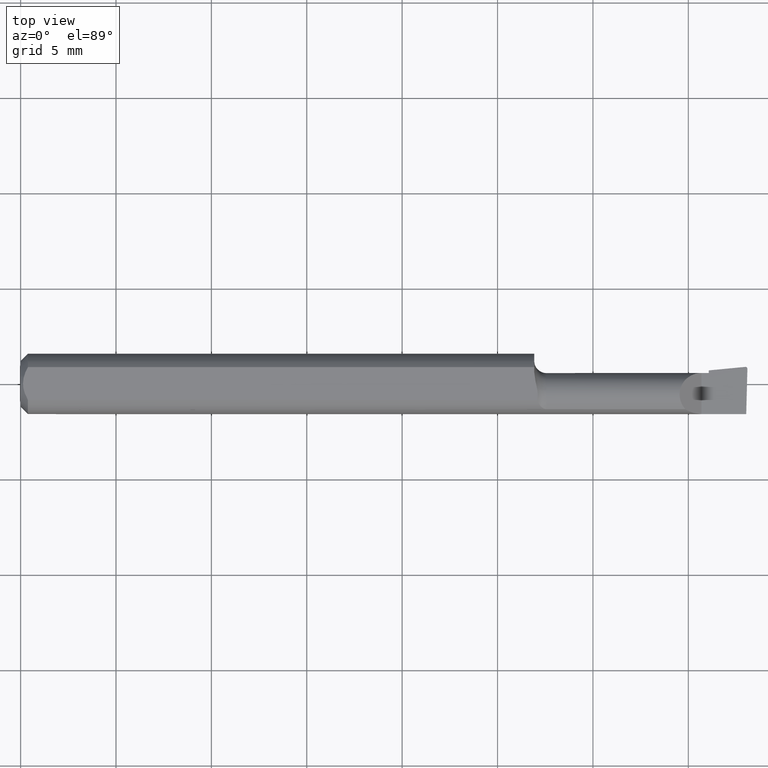
[diagram: clean part render]
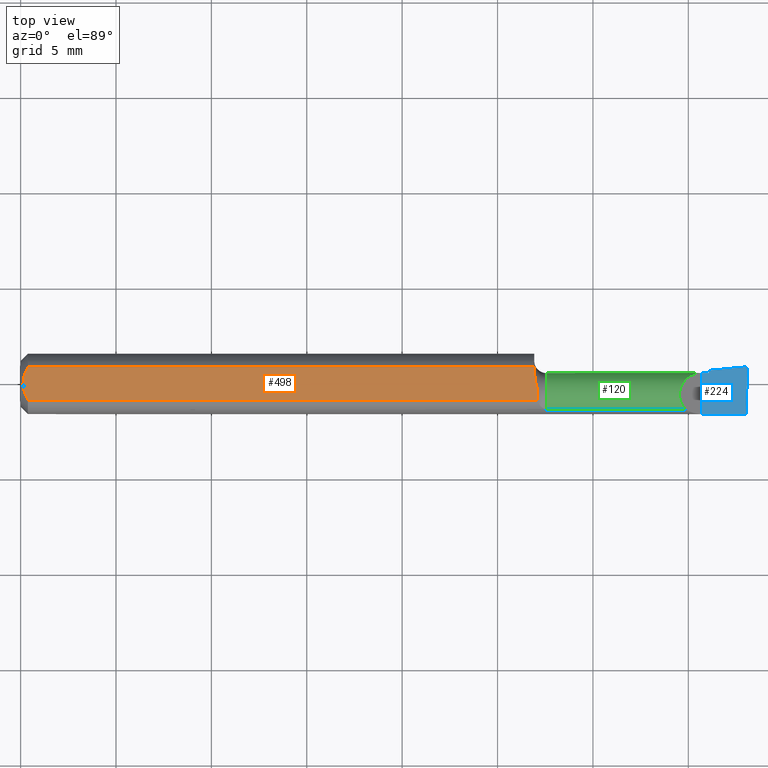
[diagram: same view with three faces highlighted in distinct colors, each labeled with its STEP entity id]
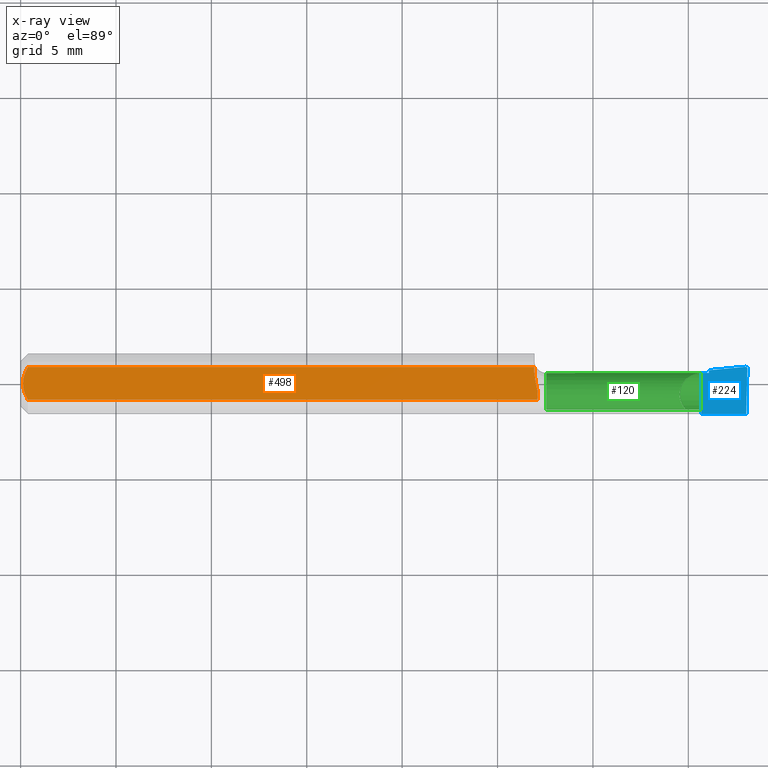
[diagram: x-ray of the same camera — body ghosted, the three highlighted faces saturated]
A machine part, top view with three faces highlighted in distinct colors.
The next image is the same camera in x-ray (body ghosted, the three faces saturated) — at least one of them is partly hidden behind the body in this view.
Their STEP definitions:

[orange] entity #498 — the highlighted planar face has unit normal (0, -0, -1).
#20 = DIRECTION ( 'NONE',  ( 0.0000000000000000000, -7.598598113218357399E-17, -1.000000000000000000 ) ) ;
#23 = CARTESIAN_POINT ( 'NONE',  ( 0.004999999999989931769, 7.898418181085889318E-16, 0.05235000000000000070 ) ) ;
#25 = CARTESIAN_POINT ( 'NONE',  ( 0.01500000000000185039, -0.03386738844380016850, 0.05235000000000000070 ) ) ;
#27 = CARTESIAN_POINT ( 'NONE',  ( 0.01216137397042175820, -0.02864146636719541034, 0.05235000000000000070 ) ) ;
#35 = CARTESIAN_POINT ( 'NONE',  ( 0.0000000000000000000, -0.03386738844375222768, 0.05234999999999997988 ) ) ;
#41 = VECTOR ( 'NONE', #346, 39.37007874015748143 ) ;
#67 = CARTESIAN_POINT ( 'NONE',  ( 0.01500000000000185039, -0.03386738844380016850, 0.05235000000000000070 ) ) ;
#69 = ORIENTED_EDGE ( 'NONE', *, *, #484, .F. ) ;
#75 = VECTOR ( 'NONE', #504, 39.37007874015748143 ) ;
#81 = EDGE_LOOP ( 'NONE', ( #628, #236, #565, #69, #408, #614 ) ) ;
#83 = CARTESIAN_POINT ( 'NONE',  ( 1.066182189689074633, -0.03386738844375222074, 0.05235000000000000070 ) ) ;
#94 = FACE_OUTER_BOUND ( 'NONE', #81, .T. ) ;
#99 = CARTESIAN_POINT ( 'NONE',  ( 0.0000000000000000000, 0.03386738844375223462, 0.05234999999999997988 ) ) ;
#130 = CARTESIAN_POINT ( 'NONE',  ( 1.067516889514667611, -0.02435447415594420989, 0.05235000000000000070 ) ) ;
#160 = EDGE_CURVE ( 'NONE', #266, #355, #398, .T. ) ;
#182 = LINE ( 'NONE', #35, #41 ) ;
#185 = CARTESIAN_POINT ( 'NONE',  ( 0.01218518006020415795, 0.02868529347538067639, 0.05235000000000000070 ) ) ;
#187 = CARTESIAN_POINT ( 'NONE',  ( 1.063943373083574784, -0.0009488278625737072997, 0.05234999999999998682 ) ) ;
#188 = VERTEX_POINT ( 'NONE', #67 ) ;
#202 = AXIS2_PLACEMENT_3D ( 'NONE', #555, #20, #243 ) ;
#235 = B_SPLINE_CURVE_WITH_KNOTS ( 'NONE', 3,
 ( #249, #568, #241, #501, #246, #559, #187, #566, #298, #651, #601, #130, #339, #83 ),
 .UNSPECIFIED., .F., .F.,
 ( 4, 2, 2, 2, 2, 2, 4 ),
 ( 0.008234143088603514474, 0.008591734916881392167, 0.008770530831020331014, 0.008859928788089797835, 0.008949326745159266391, 0.009306918573437142350, 0.009664510401715018309 ),
 .UNSPECIFIED. ) ;
#236 = ORIENTED_EDGE ( 'NONE', *, *, #524, .F. ) ;
#237 = CARTESIAN_POINT ( 'NONE',  ( 0.004999999999999268051, 0.005945714695019511074, 0.05235000000000000070 ) ) ;
#241 = CARTESIAN_POINT ( 'NONE',  ( 1.060684336333183486, 0.01400540109987310697, 0.05234999999999998682 ) ) ;
#243 = DIRECTION ( 'NONE',  ( 0.0000000000000000000, 1.000000000000000000, -7.598598113218357399E-17 ) ) ;
#246 = CARTESIAN_POINT ( 'NONE',  ( 1.062747134522028736, 0.004017454403653804990, 0.05235000000000000764 ) ) ;
#249 = CARTESIAN_POINT ( 'NONE',  ( 1.060000000000000275, 0.02414546164772667439, 0.05235000000000000070 ) ) ;
#266 = VERTEX_POINT ( 'NONE', #412 ) ;
#282 = CARTESIAN_POINT ( 'NONE',  ( 1.060000000000000275, 0.02414546164772667439, 0.05235000000000000070 ) ) ;
#286 = CARTESIAN_POINT ( 'NONE',  ( 0.004999999999998879473, -0.005957634400466955450, 0.05235000000000000070 ) ) ;
#295 = CARTESIAN_POINT ( 'NONE',  ( 0.009678036133109307534, -0.02325481837211496039, 0.05235000000000000070 ) ) ;
#298 = CARTESIAN_POINT ( 'NONE',  ( 1.064818038875745554, -0.004579228880846305041, 0.05235000000000001458 ) ) ;
#329 = CARTESIAN_POINT ( 'NONE',  ( 1.060000000000000275, 0.03386738844375224156, 0.05235000000000000070 ) ) ;
#332 = PLANE ( 'NONE',  #202 ) ;
#337 = CARTESIAN_POINT ( 'NONE',  ( 0.004999999999989931769, 7.898418181085889318E-16, 0.05235000000000000070 ) ) ;
#339 = CARTESIAN_POINT ( 'NONE',  ( 1.067065763150419899, -0.02914627190158987358, 0.05234999999999998682 ) ) ;
#340 = B_SPLINE_CURVE_WITH_KNOTS ( 'NONE', 3,
 ( #25, #27, #295, #394, #286, #337 ),
 .UNSPECIFIED., .F., .F.,
 ( 4, 2, 4 ),
 ( 0.002133667072902290657, 0.002585433046183636171, 0.003037199019464981685 ),
 .UNSPECIFIED. ) ;
#346 = DIRECTION ( 'NONE',  ( -1.000000000000000000, -0.0000000000000000000, -0.0000000000000000000 ) ) ;
#355 = VERTEX_POINT ( 'NONE', #329 ) ;
#365 = VECTOR ( 'NONE', #532, 39.37007874015748143 ) ;
#394 = CARTESIAN_POINT ( 'NONE',  ( 0.006057557792978140489, -0.01187252718384441616, 0.05234999999999998682 ) ) ;
#398 = LINE ( 'NONE', #99, #365 ) ;
#408 = ORIENTED_EDGE ( 'NONE', *, *, #563, .F. ) ;
#412 = CARTESIAN_POINT ( 'NONE',  ( 0.01500000000000000465, 0.03386738844375223462, 0.05234999999999997988 ) ) ;
#425 = CARTESIAN_POINT ( 'NONE',  ( 1.066182189689074633, -0.03386738844375222074, 0.05235000000000000070 ) ) ;
#426 = VERTEX_POINT ( 'NONE', #425 ) ;
#453 = EDGE_CURVE ( 'NONE', #496, #426, #235, .T. ) ;
#484 = EDGE_CURVE ( 'NONE', #665, #266, #557, .T. ) ;
#491 = LINE ( 'NONE', #564, #75 ) ;
#496 = VERTEX_POINT ( 'NONE', #282 ) ;
#497 = CARTESIAN_POINT ( 'NONE',  ( 0.009669996313769784607, 0.02323004575534281385, 0.05234999999999998682 ) ) ;
#498 = ADVANCED_FACE ( 'NONE', ( #94 ), #332, .F. ) ;
#501 = CARTESIAN_POINT ( 'NONE',  ( 1.062172826817815663, 0.006508548278878137014, 0.05235000000000000070 ) ) ;
#504 = DIRECTION ( 'NONE',  ( 5.691349986800549142E-18, -1.000000000000000000, 7.598598113218357399E-17 ) ) ;
#524 = EDGE_CURVE ( 'NONE', #355, #496, #491, .T. ) ;
#532 = DIRECTION ( 'NONE',  ( 1.000000000000000000, 0.0000000000000000000, 0.0000000000000000000 ) ) ;
#555 = CARTESIAN_POINT ( 'NONE',  ( 1.500000000000000222, 0.1123499999999999915, 0.05234999999999998682 ) ) ;
#556 = CARTESIAN_POINT ( 'NONE',  ( 0.01500000000000000465, 0.03386738844375223462, 0.05234999999999997988 ) ) ;
#557 = B_SPLINE_CURVE_WITH_KNOTS ( 'NONE', 3,
 ( #23, #237, #598, #497, #185, #556 ),
 .UNSPECIFIED., .F., .F.,
 ( 4, 2, 4 ),
 ( 0.003037199019464981685, 0.003488061124369676216, 0.003938923229274370746 ),
 .UNSPECIFIED. ) ;
#559 = CARTESIAN_POINT ( 'NONE',  ( 1.063640393495457026, 0.0002918085034138360166, 0.05234999999999998682 ) ) ;
#563 = EDGE_CURVE ( 'NONE', #188, #665, #340, .T. ) ;
#564 = CARTESIAN_POINT ( 'NONE',  ( 1.060000000000000275, 0.1123499999999999915, 0.05234999999999998682 ) ) ;
#565 = ORIENTED_EDGE ( 'NONE', *, *, #160, .F. ) ;
#566 = CARTESIAN_POINT ( 'NONE',  ( 1.064543615195409521, -0.003431463083333101752, 0.05235000000000000764 ) ) ;
#568 = CARTESIAN_POINT ( 'NONE',  ( 1.060000000000000275, 0.01903747135664268786, 0.05235000000000000070 ) ) ;
#598 = CARTESIAN_POINT ( 'NONE',  ( 0.006064493299689842180, 0.01189382783781397189, 0.05235000000000000070 ) ) ;
#599 = EDGE_CURVE ( 'NONE', #426, #188, #182, .T. ) ;
#601 = CARTESIAN_POINT ( 'NONE',  ( 1.067029704074272445, -0.01497150789875727889, 0.05235000000000000764 ) ) ;
#614 = ORIENTED_EDGE ( 'NONE', *, *, #599, .F. ) ;
#628 = ORIENTED_EDGE ( 'NONE', *, *, #453, .F. ) ;
#651 = CARTESIAN_POINT ( 'NONE',  ( 1.066144749454604801, -0.01034308142135323058, 0.05235000000000000764 ) ) ;
#654 = CARTESIAN_POINT ( 'NONE',  ( 0.004999999999989931769, 7.898418181085889318E-16, 0.05235000000000000070 ) ) ;
#665 = VERTEX_POINT ( 'NONE', #654 ) ;

[blue] entity #224 — the highlighted planar face has unit normal (-0, 0, -1).
#2 = CARTESIAN_POINT ( 'NONE',  ( 1.405000000000000249, -0.2500000000000000555, 1.163414459189985436E-17 ) ) ;
#8 = EDGE_CURVE ( 'NONE', #250, #97, #34, .T. ) ;
#22 = VECTOR ( 'NONE', #473, 39.37007874015748854 ) ;
#34 =( BOUNDED_CURVE ( )  B_SPLINE_CURVE ( 3, ( #363, #670, #327, #48 ),
 .UNSPECIFIED., .F., .F. ) 
 B_SPLINE_CURVE_WITH_KNOTS ( ( 4, 4 ),
 ( 1.953092279228398453, 3.511516179717623309 ),
 .UNSPECIFIED. ) 
 CURVE ( )  GEOMETRIC_REPRESENTATION_ITEM ( )  RATIONAL_B_SPLINE_CURVE ( ( 1.000000000000000000, 0.8076450242550488046, 0.8076450242550488046, 1.000000000000000000 ) ) 
 REPRESENTATION_ITEM ( '' )  );
#48 = CARTESIAN_POINT ( 'NONE',  ( 1.496007920276498648, 0.03524764111161341612, 0.0000000000000000000 ) ) ;
#50 = CARTESIAN_POINT ( 'NONE',  ( 1.420000000000000151, 0.02265000000000000346, 1.836970198721031660E-16 ) ) ;
#56 = CARTESIAN_POINT ( 'NONE',  ( 1.500000000000000222, -0.2500000000000000555, 0.0000000000000000000 ) ) ;
#72 = DIRECTION ( 'NONE',  ( 1.000000000000000000, 5.691349986800549142E-18, 0.0000000000000000000 ) ) ;
#82 = VERTEX_POINT ( 'NONE', #208 ) ;
#87 = DIRECTION ( 'NONE',  ( 0.02617694830784707966, 0.9996573249755579260, -3.158139334220691399E-18 ) ) ;
#96 = VERTEX_POINT ( 'NONE', #414 ) ;
#97 = VERTEX_POINT ( 'NONE', #161 ) ;
#110 = LINE ( 'NONE', #2, #663 ) ;
#113 = CARTESIAN_POINT ( 'NONE',  ( 1.420000000000000151, -0.2500000000000000555, 9.797174393178828616E-18 ) ) ;
#127 = CARTESIAN_POINT ( 'NONE',  ( 1.495883579913029671, 0.03524764111161342306, 8.532676796529436165E-18 ) ) ;
#133 = CARTESIAN_POINT ( 'NONE',  ( 1.496007920276498648, 0.03524764111161341612, 0.0000000000000000000 ) ) ;
#141 = ORIENTED_EDGE ( 'NONE', *, *, #205, .F. ) ;
#144 = VECTOR ( 'NONE', #72, 39.37007874015748143 ) ;
#154 = LINE ( 'NONE', #553, #444 ) ;
#156 = VECTOR ( 'NONE', #87, 39.37007874015748854 ) ;
#161 = CARTESIAN_POINT ( 'NONE',  ( 1.496007920276498648, 0.03524764111161341612, 0.0000000000000000000 ) ) ;
#163 = VERTEX_POINT ( 'NONE', #50 ) ;
#166 = EDGE_LOOP ( 'NONE', ( #353, #254, #611, #418, #141, #605, #483, #547 ) ) ;
#178 = CARTESIAN_POINT ( 'NONE',  ( -2.563953169053420290E-19, 0.02264999999999996183, 1.836970198721030427E-16 ) ) ;
#179 = EDGE_CURVE ( 'NONE', #487, #294, #184, .T. ) ;
#180 = CARTESIAN_POINT ( 'NONE',  ( 1.495759144559519527, 0.03524165206609282397, 8.547915732267098835E-18 ) ) ;
#183 = CARTESIAN_POINT ( 'NONE',  ( 1.495634880358085672, 0.03522968678441162904, 5.345729797365519968E-19 ) ) ;
#184 = LINE ( 'NONE', #470, #22 ) ;
#193 = CARTESIAN_POINT ( 'NONE',  ( 1.499880855614015962, 0.03110005946548963576, 2.797005382439469068E-20 ) ) ;
#200 = LINE ( 'NONE', #248, #156 ) ;
#205 = EDGE_CURVE ( 'NONE', #163, #487, #300, .T. ) ;
#208 = CARTESIAN_POINT ( 'NONE',  ( 1.497433779686219379, -0.06235000000000005121, 3.231995301756449018E-19 ) ) ;
#224 = ADVANCED_FACE ( 'NONE', ( #442 ), #416, .F. ) ;
#232 =( BOUNDED_CURVE ( )  B_SPLINE_CURVE ( 3, ( #133, #127, #180, #183 ),
 .UNSPECIFIED., .F., .T. ) 
 B_SPLINE_CURVE_WITH_KNOTS ( ( 4, 4 ),
 ( 3.511516179717623309, 3.604018710826139671 ),
 .UNSPECIFIED. ) 
 CURVE ( )  GEOMETRIC_REPRESENTATION_ITEM ( )  RATIONAL_B_SPLINE_CURVE ( ( 1.000000000000000000, 0.9992870672494020834, 0.9992870672494020834, 1.000000000000000000 ) ) 
 REPRESENTATION_ITEM ( '' )  );
#244 = CARTESIAN_POINT ( 'NONE',  ( 1.420000000000000151, 0.02794687614419804830, 1.856802933193678953E-16 ) ) ;
#248 = CARTESIAN_POINT ( 'NONE',  ( 1.492525117049605887, -0.2498042633013223268, 9.154091479201484239E-19 ) ) ;
#250 = VERTEX_POINT ( 'NONE', #193 ) ;
#254 = ORIENTED_EDGE ( 'NONE', *, *, #8, .T. ) ;
#284 = EDGE_CURVE ( 'NONE', #82, #96, #154, .T. ) ;
#285 = LINE ( 'NONE', #178, #144 ) ;
#294 = VERTEX_POINT ( 'NONE', #493 ) ;
#300 = LINE ( 'NONE', #113, #619 ) ;
#318 = EDGE_CURVE ( 'NONE', #356, #163, #285, .T. ) ;
#327 = CARTESIAN_POINT ( 'NONE',  ( 1.498346190944505052, 0.03524764111161339530, 8.231093924805309265E-18 ) ) ;
#353 = ORIENTED_EDGE ( 'NONE', *, *, #620, .T. ) ;
#356 = VERTEX_POINT ( 'NONE', #590 ) ;
#363 = CARTESIAN_POINT ( 'NONE',  ( 1.499880855614015962, 0.03110005946548963576, 2.797005382439469068E-20 ) ) ;
#389 = EDGE_CURVE ( 'NONE', #96, #356, #110, .T. ) ;
#414 = CARTESIAN_POINT ( 'NONE',  ( 1.405000000000000249, -0.06235000000000005121, 1.163414459189985436E-17 ) ) ;
#416 = PLANE ( 'NONE',  #477 ) ;
#418 = ORIENTED_EDGE ( 'NONE', *, *, #179, .F. ) ;
#419 = DIRECTION ( 'NONE',  ( -5.691349986800549142E-18, 1.000000000000000000, 6.969893544162626646E-34 ) ) ;
#431 = DIRECTION ( 'NONE',  ( -0.0000000000000000000, 1.000000000000000000, -0.0000000000000000000 ) ) ;
#438 = DIRECTION ( 'NONE',  ( -1.224646799147353947E-16, 0.0000000000000000000, -1.000000000000000000 ) ) ;
#439 = DIRECTION ( 'NONE',  ( -1.000000000000000000, 0.0000000000000000000, 1.224646799147353947E-16 ) ) ;
#442 = FACE_OUTER_BOUND ( 'NONE', #166, .T. ) ;
#444 = VECTOR ( 'NONE', #645, 39.37007874015748143 ) ;
#470 = CARTESIAN_POINT ( 'NONE',  ( 0.8971276994979847652, -0.02239999999999999977, 7.383056331043944924E-17 ) ) ;
#473 = DIRECTION ( 'NONE',  ( 0.9953961983671786307, 0.09584575252022466130, -1.219008768213809603E-16 ) ) ;
#477 = AXIS2_PLACEMENT_3D ( 'NONE', #56, #438, #439 ) ;
#483 = ORIENTED_EDGE ( 'NONE', *, *, #389, .F. ) ;
#487 = VERTEX_POINT ( 'NONE', #244 ) ;
#493 = CARTESIAN_POINT ( 'NONE',  ( 1.495634880358085672, 0.03522968678441162904, 5.345729797365519968E-19 ) ) ;
#547 = ORIENTED_EDGE ( 'NONE', *, *, #284, .F. ) ;
#553 = CARTESIAN_POINT ( 'NONE',  ( 2.249639673992788601E-32, -0.06234999999999999570, 1.836970198721030427E-16 ) ) ;
#587 = EDGE_CURVE ( 'NONE', #97, #294, #232, .T. ) ;
#590 = CARTESIAN_POINT ( 'NONE',  ( 1.405000000000000249, 0.02264999999999992714, 1.163414459189985436E-17 ) ) ;
#605 = ORIENTED_EDGE ( 'NONE', *, *, #318, .F. ) ;
#611 = ORIENTED_EDGE ( 'NONE', *, *, #587, .T. ) ;
#619 = VECTOR ( 'NONE', #419, 39.37007874015748143 ) ;
#620 = EDGE_CURVE ( 'NONE', #82, #250, #200, .T. ) ;
#645 = DIRECTION ( 'NONE',  ( -1.000000000000000000, -0.0000000000000000000, -0.0000000000000000000 ) ) ;
#663 = VECTOR ( 'NONE', #431, 39.37007874015748143 ) ;
#670 = CARTESIAN_POINT ( 'NONE',  ( 1.499944638786153694, 0.03353584053852151636, 8.035340521517366195E-18 ) ) ;

[green] entity #120 — the highlighted cylindrical surface (edge-blend (fillet) strip) has radius 1.1443 mm, axis along (-1, -0, -0).
#3 = VECTOR ( 'NONE', #328, 39.37007874015748143 ) ;
#16 = CARTESIAN_POINT ( 'NONE',  ( 1.420000000000000151, -0.02239999999999999630, 0.0000000000000000000 ) ) ;
#26 = CARTESIAN_POINT ( 'NONE',  ( 1.371638225962093838, -0.05267366071428578739, 0.03336177403790611951 ) ) ;
#38 = CIRCLE ( 'NONE', #145, 0.04504999999999999283 ) ;
#47 = ORIENTED_EDGE ( 'NONE', *, *, #429, .F. ) ;
#50 = CARTESIAN_POINT ( 'NONE',  ( 1.420000000000000151, 0.02265000000000000346, 1.836970198721031660E-16 ) ) ;
#54 = ORIENTED_EDGE ( 'NONE', *, *, #143, .F. ) ;
#62 = VERTEX_POINT ( 'NONE', #357 ) ;
#68 = DIRECTION ( 'NONE',  ( 0.0000000000000000000, -1.000000000000000000, 0.0000000000000000000 ) ) ;
#70 = CARTESIAN_POINT ( 'NONE',  ( 1.252500000000000169, -0.05267366071428577351, -0.03336177403790612644 ) ) ;
#72 = DIRECTION ( 'NONE',  ( 1.000000000000000000, 5.691349986800549142E-18, 0.0000000000000000000 ) ) ;
#77 = DIRECTION ( 'NONE',  ( 0.0000000000000000000, -1.000000000000000000, 1.776356839400250465E-15 ) ) ;
#101 = VERTEX_POINT ( 'NONE', #231 ) ;
#106 = VECTOR ( 'NONE', #196, 39.37007874015748143 ) ;
#116 = CARTESIAN_POINT ( 'NONE',  ( 1.493589448587071544, -0.05267366071428577351, -0.03336177403790612644 ) ) ;
#120 = ADVANCED_FACE ( 'NONE', ( #303 ), #575, .T. ) ;
#121 = CARTESIAN_POINT ( 'NONE',  ( 1.085000000000000187, -0.02239999999999999977, 0.0000000000000000000 ) ) ;
#134 = CARTESIAN_POINT ( 'NONE',  ( 1.420000000000000151, -0.02239999999999999630, -0.04504999999999998589 ) ) ;
#136 = LINE ( 'NONE', #314, #600 ) ;
#139 = VERTEX_POINT ( 'NONE', #536 ) ;
#143 = EDGE_CURVE ( 'NONE', #531, #436, #136, .T. ) ;
#144 = VECTOR ( 'NONE', #72, 39.37007874015748143 ) ;
#145 = AXIS2_PLACEMENT_3D ( 'NONE', #593, #233, #551 ) ;
#153 =( BOUNDED_CURVE ( )  B_SPLINE_CURVE ( 3, ( #116, #158, #430, #370 ),
 .UNSPECIFIED., .F., .T. ) 
 B_SPLINE_CURVE_WITH_KNOTS ( ( 4, 4 ),
 ( 5.756326750816665339, 6.493234751459597831 ),
 .UNSPECIFIED. ) 
 CURVE ( )  GEOMETRIC_REPRESENTATION_ITEM ( )  RATIONAL_B_SPLINE_CURVE ( ( 1.000000000000000000, 0.9552568590268901705, 0.9552568590268901705, 1.000000000000000000 ) ) 
 REPRESENTATION_ITEM ( '' )  );
#158 = CARTESIAN_POINT ( 'NONE',  ( 1.492874371667013866, -0.04428776192107813231, -0.04097143695815294584 ) ) ;
#163 = VERTEX_POINT ( 'NONE', #50 ) ;
#167 = DIRECTION ( 'NONE',  ( -1.000000000000000000, -5.691349986800549142E-18, -0.0000000000000000000 ) ) ;
#172 = CARTESIAN_POINT ( 'NONE',  ( 0.0000000000000000000, -0.02240000000000000324, 0.0000000000000000000 ) ) ;
#176 = DIRECTION ( 'NONE',  ( -1.000000000000000000, 5.691349986800548372E-18, -0.0000000000000000000 ) ) ;
#178 = CARTESIAN_POINT ( 'NONE',  ( -2.563953169053420290E-19, 0.02264999999999996183, 1.836970198721030427E-16 ) ) ;
#181 = AXIS2_PLACEMENT_3D ( 'NONE', #545, #167, #485 ) ;
#196 = DIRECTION ( 'NONE',  ( 1.000000000000000000, 5.691349986800549142E-18, 0.0000000000000000000 ) ) ;
#206 = VERTEX_POINT ( 'NONE', #420 ) ;
#211 = EDGE_CURVE ( 'NONE', #62, #206, #459, .T. ) ;
#213 = AXIS2_PLACEMENT_3D ( 'NONE', #121, #440, #68 ) ;
#231 = CARTESIAN_POINT ( 'NONE',  ( 1.371638225962093838, -0.05267366071428578739, 0.03336177403790611951 ) ) ;
#233 = DIRECTION ( 'NONE',  ( -1.000000000000000000, -5.691349986800549142E-18, -0.0000000000000000000 ) ) ;
#261 = CIRCLE ( 'NONE', #540, 0.04504999999999997201 ) ;
#283 = DIRECTION ( 'NONE',  ( 5.691349986800549913E-18, -1.000000000000000000, 0.0000000000000000000 ) ) ;
#285 = LINE ( 'NONE', #178, #144 ) ;
#301 = CIRCLE ( 'NONE', #181, 0.04504999999999999283 ) ;
#303 = FACE_OUTER_BOUND ( 'NONE', #544, .T. ) ;
#304 = EDGE_CURVE ( 'NONE', #163, #139, #38, .T. ) ;
#305 = AXIS2_PLACEMENT_3D ( 'NONE', #172, #316, #283 ) ;
#312 = ORIENTED_EDGE ( 'NONE', *, *, #371, .T. ) ;
#314 = CARTESIAN_POINT ( 'NONE',  ( 1.500000000000000222, -0.02239999999999999630, -0.04504999999999998589 ) ) ;
#316 = DIRECTION ( 'NONE',  ( -1.000000000000000000, -5.691349986800549142E-18, -0.0000000000000000000 ) ) ;
#318 = EDGE_CURVE ( 'NONE', #356, #163, #285, .T. ) ;
#328 = DIRECTION ( 'NONE',  ( -1.000000000000000000, -5.691349986800549142E-18, -0.0000000000000000000 ) ) ;
#336 = EDGE_CURVE ( 'NONE', #479, #206, #578, .T. ) ;
#338 = ORIENTED_EDGE ( 'NONE', *, *, #409, .F. ) ;
#356 = VERTEX_POINT ( 'NONE', #590 ) ;
#357 = CARTESIAN_POINT ( 'NONE',  ( 1.493589448587071544, -0.05267366071428577351, -0.03336177403790612644 ) ) ;
#364 = LINE ( 'NONE', #512, #106 ) ;
#370 = CARTESIAN_POINT ( 'NONE',  ( 1.492946566646605078, -0.02239999999999999630, -0.04504999999999998589 ) ) ;
#371 = EDGE_CURVE ( 'NONE', #515, #436, #301, .T. ) ;
#392 = DIRECTION ( 'NONE',  ( 1.000000000000000000, 5.691349986800549142E-18, 0.0000000000000000000 ) ) ;
#396 = CARTESIAN_POINT ( 'NONE',  ( 1.341051366671215384, -0.01896673977657555368, 0.06394863332878404638 ) ) ;
#409 = EDGE_CURVE ( 'NONE', #62, #531, #153, .T. ) ;
#420 = CARTESIAN_POINT ( 'NONE',  ( 1.085000000000000187, -0.05267366071428582208, -0.03336177403790606399 ) ) ;
#429 = EDGE_CURVE ( 'NONE', #515, #139, #261, .T. ) ;
#430 = CARTESIAN_POINT ( 'NONE',  ( 1.492650040401416689, -0.03372388044486964581, -0.04504999999999998589 ) ) ;
#436 = VERTEX_POINT ( 'NONE', #134 ) ;
#437 = ORIENTED_EDGE ( 'NONE', *, *, #448, .T. ) ;
#440 = DIRECTION ( 'NONE',  ( -1.000000000000000000, -5.691349986800549142E-18, -0.0000000000000000000 ) ) ;
#448 = EDGE_CURVE ( 'NONE', #479, #101, #364, .T. ) ;
#454 = CARTESIAN_POINT ( 'NONE',  ( 1.420000000000000151, -0.001476535193822992769, -0.03989625446711344420 ) ) ;
#459 = LINE ( 'NONE', #70, #3 ) ;
#463 = EDGE_CURVE ( 'NONE', #101, #356, #526, .T. ) ;
#479 = VERTEX_POINT ( 'NONE', #542 ) ;
#485 = DIRECTION ( 'NONE',  ( 0.0000000000000000000, -1.000000000000000000, 0.0000000000000000000 ) ) ;
#512 = CARTESIAN_POINT ( 'NONE',  ( 1.252500000000000169, -0.05267366071428577351, 0.03336177403790612644 ) ) ;
#515 = VERTEX_POINT ( 'NONE', #454 ) ;
#517 = ORIENTED_EDGE ( 'NONE', *, *, #318, .T. ) ;
#526 =( BOUNDED_CURVE ( )  B_SPLINE_CURVE ( 3, ( #26, #396, #653, #608 ),
 .UNSPECIFIED., .F., .T. ) 
 B_SPLINE_CURVE_WITH_KNOTS ( ( 4, 4 ),
 ( 5.546277306536651963, 7.853981633974482790 ),
 .UNSPECIFIED. ) 
 CURVE ( )  GEOMETRIC_REPRESENTATION_ITEM ( )  RATIONAL_B_SPLINE_CURVE ( ( 1.000000000000000000, 0.6033122017619988453, 0.6033122017619988453, 1.000000000000000000 ) ) 
 REPRESENTATION_ITEM ( '' )  );
#527 = ORIENTED_EDGE ( 'NONE', *, *, #336, .F. ) ;
#531 = VERTEX_POINT ( 'NONE', #594 ) ;
#536 = CARTESIAN_POINT ( 'NONE',  ( 1.420000000000000151, 0.01811171944543688711, -0.01970540757188768421 ) ) ;
#540 = AXIS2_PLACEMENT_3D ( 'NONE', #16, #392, #77 ) ;
#542 = CARTESIAN_POINT ( 'NONE',  ( 1.085000000000000187, -0.05267366071428583596, 0.03336177403790603624 ) ) ;
#544 = EDGE_LOOP ( 'NONE', ( #338, #602, #527, #437, #636, #517, #554, #47, #312, #54 ) ) ;
#545 = CARTESIAN_POINT ( 'NONE',  ( 1.420000000000000151, -0.02239999999999999630, 0.0000000000000000000 ) ) ;
#551 = DIRECTION ( 'NONE',  ( 0.0000000000000000000, -1.000000000000000000, 0.0000000000000000000 ) ) ;
#554 = ORIENTED_EDGE ( 'NONE', *, *, #304, .T. ) ;
#575 = CYLINDRICAL_SURFACE ( 'NONE', #305, 0.04504999999999997201 ) ;
#578 = CIRCLE ( 'NONE', #213, 0.04504999999999995813 ) ;
#590 = CARTESIAN_POINT ( 'NONE',  ( 1.405000000000000249, 0.02264999999999992714, 1.163414459189985436E-17 ) ) ;
#593 = CARTESIAN_POINT ( 'NONE',  ( 1.420000000000000151, -0.02239999999999999630, 0.0000000000000000000 ) ) ;
#594 = CARTESIAN_POINT ( 'NONE',  ( 1.492946566646605078, -0.02239999999999999630, -0.04504999999999998589 ) ) ;
#600 = VECTOR ( 'NONE', #176, 39.37007874015748143 ) ;
#602 = ORIENTED_EDGE ( 'NONE', *, *, #211, .T. ) ;
#608 = CARTESIAN_POINT ( 'NONE',  ( 1.405000000000000249, 0.02264999999999992714, 1.163414459189985436E-17 ) ) ;
#636 = ORIENTED_EDGE ( 'NONE', *, *, #463, .T. ) ;
#653 = CARTESIAN_POINT ( 'NONE',  ( 1.359483931624303699, 0.02264999999999997571, 0.04551606837569584230 ) ) ;